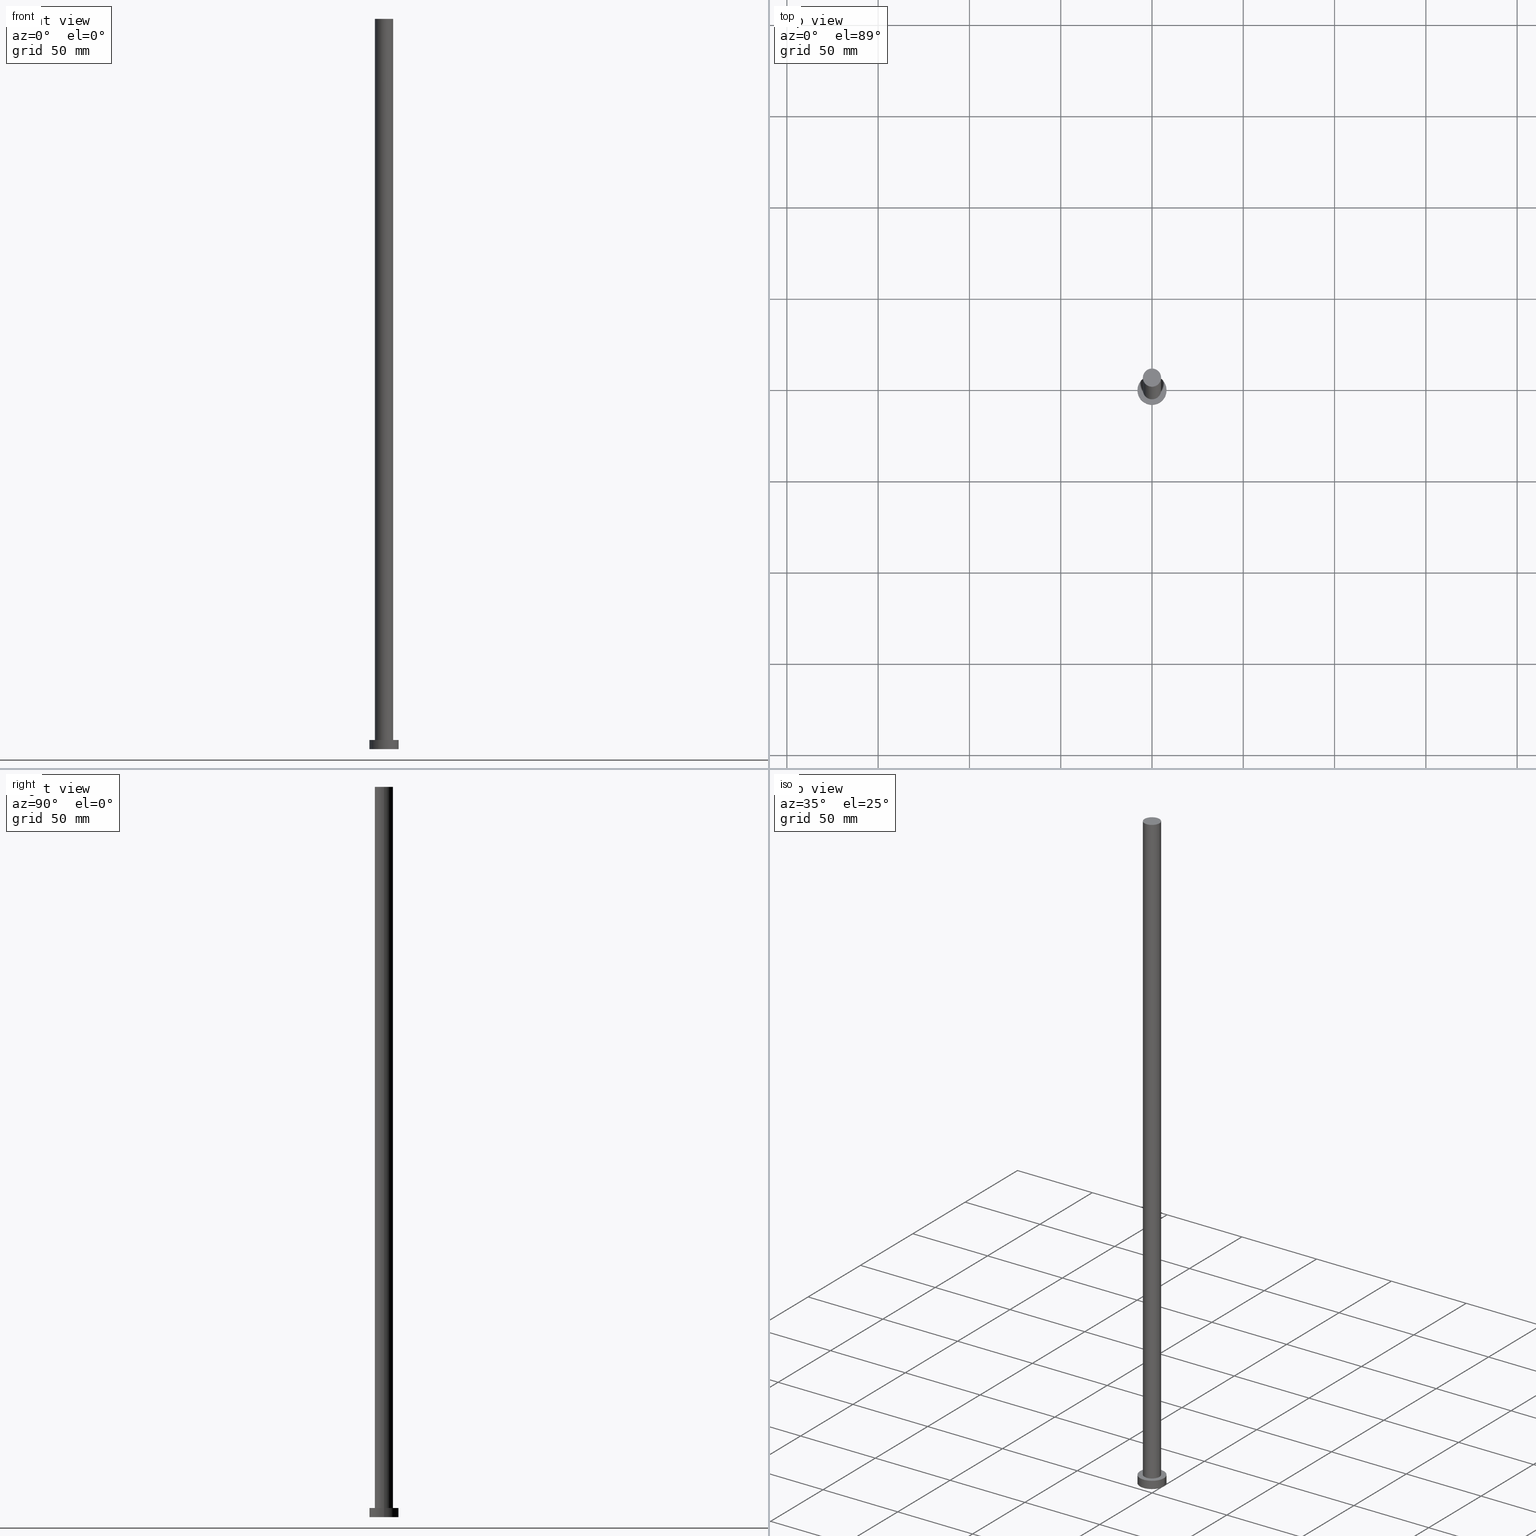
[diagram: canonical four-view strip — front | top / right | iso, engineering-drawing reading convention]
A machine part, canonical four-view strip (front | top / right | iso — engineering-drawing reading convention). The complete STEP part file that produces these views, byte-faithful:
ISO-10303-21;
HEADER;
FILE_DESCRIPTION (( 'STEP AP203' ),
    '1' );
FILE_NAME ('90de.STEP',
    '2023-02-13T09:58:58',
    ( '' ),
    ( '' ),
    'SwSTEP 2.0',
    'SolidWorks 2019',
    '' );
FILE_SCHEMA (( 'CONFIG_CONTROL_DESIGN' ));
ENDSEC;

DATA;
#1 = CC_DESIGN_PERSON_AND_ORGANIZATION_ASSIGNMENT ( #200, #29, ( #128 ) ) ;
#2 = DIRECTION ( 'NONE',  ( 0.000000000000000000, 0.000000000000000000, 1.000000000000000000 ) ) ;
#3 = ORIENTED_EDGE ( 'NONE', *, *, #202, .F. ) ;
#4 = PERSON_AND_ORGANIZATION ( #237, #148 ) ;
#5 = DIRECTION ( 'NONE',  ( 1.000000000000000000, 0.000000000000000000, -0.000000000000000000 ) ) ;
#6 = VERTEX_POINT ( 'NONE', #255 ) ;
#7 = CYLINDRICAL_SURFACE ( 'NONE', #106, 5.000000000000000888 ) ;
#8 = CARTESIAN_POINT ( 'NONE',  ( 5.000000000000000888, 6.123233995736766282E-16, 400.0000000000000000 ) ) ;
#9 = APPROVAL_ROLE ( '' ) ;
#10 = AXIS2_PLACEMENT_3D ( 'NONE', #138, #37, #36 ) ;
#11 = CYLINDRICAL_SURFACE ( 'NONE', #117, 8.000000000000000000 ) ;
#12 = LOCAL_TIME ( 10, 58, 58.00000000000000000, #115 ) ;
#13 = DATE_AND_TIME ( #60, #12 ) ;
#14 = DIRECTION ( 'NONE',  ( -0.000000000000000000, -0.000000000000000000, -1.000000000000000000 ) ) ;
#15 = APPROVAL ( #186, 'NEUR�EN�' ) ;
#16 = FACE_OUTER_BOUND ( 'NONE', #153, .T. ) ;
#17 = DATE_TIME_ROLE ( 'classification_date' ) ;
#18 = AXIS2_PLACEMENT_3D ( 'NONE', #236, #214, #114 ) ;
#19 = EDGE_CURVE ( 'NONE', #156, #93, #97, .T. ) ;
#20 = AXIS2_PLACEMENT_3D ( 'NONE', #213, #77, #170 ) ;
#21 = PRODUCT_DEFINITION_SHAPE ( 'NONE', 'NONE',  #247 ) ;
#22 = DATE_AND_TIME ( #94, #215 ) ;
#23 = LOCAL_TIME ( 10, 58, 58.00000000000000000, #210 ) ;
#24 = CARTESIAN_POINT ( 'NONE',  ( 0.000000000000000000, 0.000000000000000000, 5.000000000000000000 ) ) ;
#25 = CARTESIAN_POINT ( 'NONE',  ( 0.000000000000000000, 0.000000000000000000, 400.0000000000000000 ) ) ;
#26 = AXIS2_PLACEMENT_3D ( 'NONE', #136, #61, #104 ) ;
#27 = CC_DESIGN_APPROVAL ( #197, ( #128 ) ) ;
#28 = DIRECTION ( 'NONE',  ( 1.000000000000000000, 0.000000000000000000, 0.000000000000000000 ) ) ;
#29 = PERSON_AND_ORGANIZATION_ROLE ( 'classification_officer' ) ;
#30 = CALENDAR_DATE ( 2023, 13, 2 ) ;
#31 = AXIS2_PLACEMENT_3D ( 'NONE', #68, #218, #167 ) ;
#32 = PRODUCT_RELATED_PRODUCT_CATEGORY ( 'detail', '', ( #226 ) ) ;
#33 = DIRECTION ( 'NONE',  ( 1.000000000000000000, 0.000000000000000000, 0.000000000000000000 ) ) ;
#34 = SHAPE_DEFINITION_REPRESENTATION ( #21, #165 ) ;
#35 = EDGE_LOOP ( 'NONE', ( #252, #243, #91, #232 ) ) ;
#36 = DIRECTION ( 'NONE',  ( 1.000000000000000000, 0.000000000000000000, 0.000000000000000000 ) ) ;
#37 = DIRECTION ( 'NONE',  ( 0.000000000000000000, 0.000000000000000000, 1.000000000000000000 ) ) ;
#38 =( GEOMETRIC_REPRESENTATION_CONTEXT ( 3 ) GLOBAL_UNCERTAINTY_ASSIGNED_CONTEXT ( ( #55 ) ) GLOBAL_UNIT_ASSIGNED_CONTEXT ( ( #112, #127, #245 ) ) REPRESENTATION_CONTEXT ( 'NONE', 'WORKASPACE' ) );
#39 = EDGE_CURVE ( 'NONE', #93, #88, #130, .T. ) ;
#40 = DIRECTION ( 'NONE',  ( -1.000000000000000000, 0.000000000000000000, 0.000000000000000000 ) ) ;
#41 = APPLICATION_PROTOCOL_DEFINITION ( 'international standard', 'config_control_design', 1994, #177 ) ;
#42 = CIRCLE ( 'NONE', #31, 5.000000000000000888 ) ;
#43 = CC_DESIGN_SECURITY_CLASSIFICATION ( #128, ( #154 ) ) ;
#44 = ORIENTED_EDGE ( 'NONE', *, *, #151, .T. ) ;
#45 = MANIFOLD_SOLID_BREP ( 'P�idat vysunut�m3', #140 ) ;
#46 = CARTESIAN_POINT ( 'NONE',  ( 8.000000000000000000, 9.797174393178825657E-16, 5.000000000000000000 ) ) ;
#47 = ORIENTED_EDGE ( 'NONE', *, *, #84, .T. ) ;
#48 = CC_DESIGN_PERSON_AND_ORGANIZATION_ASSIGNMENT ( #207, #76, ( #247 ) ) ;
#49 = AXIS2_PLACEMENT_3D ( 'NONE', #238, #144, #219 ) ;
#50 = DATE_AND_TIME ( #53, #63 ) ;
#51 = ORIENTED_EDGE ( 'NONE', *, *, #113, .T. ) ;
#52 = PERSON_AND_ORGANIZATION ( #237, #148 ) ;
#53 = CALENDAR_DATE ( 2023, 13, 2 ) ;
#54 = EDGE_LOOP ( 'NONE', ( #129, #51 ) ) ;
#55 = UNCERTAINTY_MEASURE_WITH_UNIT (LENGTH_MEASURE( 1.000000000000000082E-05 ), #112, 'distance_accuracy_value', 'NONE');
#56 = ORIENTED_EDGE ( 'NONE', *, *, #102, .T. ) ;
#57 = CALENDAR_DATE ( 2023, 13, 2 ) ;
#58 = PERSON_AND_ORGANIZATION ( #237, #148 ) ;
#59 = CARTESIAN_POINT ( 'NONE',  ( 5.000000000000000888, 6.123233995736766282E-16, 5.000000000000000000 ) ) ;
#60 = CALENDAR_DATE ( 2023, 13, 2 ) ;
#61 = DIRECTION ( 'NONE',  ( -0.000000000000000000, -0.000000000000000000, -1.000000000000000000 ) ) ;
#62 = CIRCLE ( 'NONE', #124, 5.000000000000000888 ) ;
#63 = LOCAL_TIME ( 10, 58, 58.00000000000000000, #231 ) ;
#64 = LINE ( 'NONE', #122, #82 ) ;
#65 = CC_DESIGN_APPROVAL ( #139, ( #247 ) ) ;
#66 = DIRECTION ( 'NONE',  ( 1.000000000000000000, 0.000000000000000000, 0.000000000000000000 ) ) ;
#67 = ORIENTED_EDGE ( 'NONE', *, *, #253, .T. ) ;
#68 = CARTESIAN_POINT ( 'NONE',  ( 0.000000000000000000, 0.000000000000000000, 5.000000000000000000 ) ) ;
#69 = EDGE_LOOP ( 'NONE', ( #3, #147 ) ) ;
#70 = ADVANCED_FACE ( 'NONE', ( #16 ), #171, .T. ) ;
#71 = DIRECTION ( 'NONE',  ( -0.000000000000000000, -0.000000000000000000, -1.000000000000000000 ) ) ;
#72 = ORIENTED_EDGE ( 'NONE', *, *, #39, .F. ) ;
#73 = CIRCLE ( 'NONE', #169, 8.000000000000000000 ) ;
#74 = EDGE_LOOP ( 'NONE', ( #47, #44 ) ) ;
#75 = ADVANCED_FACE ( 'NONE', ( #116 ), #176, .T. ) ;
#76 = PERSON_AND_ORGANIZATION_ROLE ( 'creator' ) ;
#77 = DIRECTION ( 'NONE',  ( 0.000000000000000000, 0.000000000000000000, 1.000000000000000000 ) ) ;
#78 = DATE_TIME_ROLE ( 'creation_date' ) ;
#79 = ORIENTED_EDGE ( 'NONE', *, *, #39, .T. ) ;
#80 = DIRECTION ( 'NONE',  ( 0.000000000000000000, 0.000000000000000000, 1.000000000000000000 ) ) ;
#81 = DIRECTION ( 'NONE',  ( -1.000000000000000000, 0.000000000000000000, 0.000000000000000000 ) ) ;
#82 = VECTOR ( 'NONE', #196, 1000.000000000000000 ) ;
#83 = VECTOR ( 'NONE', #96, 1000.000000000000000 ) ;
#84 = EDGE_CURVE ( 'NONE', #211, #158, #73, .T. ) ;
#85 = PLANE ( 'NONE',  #175 ) ;
#86 = PERSON_AND_ORGANIZATION_ROLE ( 'design_supplier' ) ;
#87 = FACE_OUTER_BOUND ( 'NONE', #174, .T. ) ;
#88 = VERTEX_POINT ( 'NONE', #59 ) ;
#89 = EDGE_CURVE ( 'NONE', #88, #6, #137, .T. ) ;
#90 = DIRECTION ( 'NONE',  ( 0.000000000000000000, 0.000000000000000000, 1.000000000000000000 ) ) ;
#91 = ORIENTED_EDGE ( 'NONE', *, *, #142, .T. ) ;
#92 = DIRECTION ( 'NONE',  ( 1.000000000000000000, 0.000000000000000000, -0.000000000000000000 ) ) ;
#93 = VERTEX_POINT ( 'NONE', #8 ) ;
#94 = CALENDAR_DATE ( 2023, 13, 2 ) ;
#95 = PERSON_AND_ORGANIZATION ( #237, #148 ) ;
#96 = DIRECTION ( 'NONE',  ( -0.000000000000000000, -0.000000000000000000, -1.000000000000000000 ) ) ;
#97 = CIRCLE ( 'NONE', #217, 5.000000000000000888 ) ;
#98 = CC_DESIGN_DATE_AND_TIME_ASSIGNMENT ( #101, #78, ( #247 ) ) ;
#99 = COORDINATED_UNIVERSAL_TIME_OFFSET ( 1, 0, .AHEAD. ) ;
#100 = CARTESIAN_POINT ( 'NONE',  ( 0.000000000000000000, 0.000000000000000000, 5.000000000000000000 ) ) ;
#101 = DATE_AND_TIME ( #30, #227 ) ;
#102 = EDGE_CURVE ( 'NONE', #156, #6, #134, .T. ) ;
#103 = EDGE_CURVE ( 'NONE', #203, #182, #107, .T. ) ;
#104 = DIRECTION ( 'NONE',  ( -1.000000000000000000, 0.000000000000000000, 0.000000000000000000 ) ) ;
#105 = APPLICATION_CONTEXT ( 'configuration controlled 3d designs of mechanical parts and assemblies' ) ;
#106 = AXIS2_PLACEMENT_3D ( 'NONE', #25, #71, #40 ) ;
#107 = CIRCLE ( 'NONE', #20, 8.000000000000000000 ) ;
#108 = MECHANICAL_CONTEXT ( 'NONE', #177, 'mechanical' ) ;
#109 = CARTESIAN_POINT ( 'NONE',  ( 0.000000000000000000, 0.000000000000000000, 400.0000000000000000 ) ) ;
#110 = DIRECTION ( 'NONE',  ( 0.000000000000000000, 0.000000000000000000, 1.000000000000000000 ) ) ;
#111 = EDGE_LOOP ( 'NONE', ( #221, #67, #192, #118 ) ) ;
#112 =( LENGTH_UNIT ( ) NAMED_UNIT ( * ) SI_UNIT ( .MILLI., .METRE. ) );
#113 = EDGE_CURVE ( 'NONE', #93, #156, #62, .T. ) ;
#114 = DIRECTION ( 'NONE',  ( 1.000000000000000000, 0.000000000000000000, 0.000000000000000000 ) ) ;
#115 = COORDINATED_UNIVERSAL_TIME_OFFSET ( 1, 0, .AHEAD. ) ;
#116 = FACE_OUTER_BOUND ( 'NONE', #111, .T. ) ;
#117 = AXIS2_PLACEMENT_3D ( 'NONE', #100, #250, #143 ) ;
#118 = ORIENTED_EDGE ( 'NONE', *, *, #142, .F. ) ;
#119 = ORIENTED_EDGE ( 'NONE', *, *, #19, .F. ) ;
#120 = ADVANCED_FACE ( 'NONE', ( #188 ), #11, .T. ) ;
#121 = EDGE_LOOP ( 'NONE', ( #162, #208 ) ) ;
#122 = CARTESIAN_POINT ( 'NONE',  ( -8.000000000000000000, 0.000000000000000000, 5.000000000000000000 ) ) ;
#123 = DIRECTION ( 'NONE',  ( -0.000000000000000000, -0.000000000000000000, -1.000000000000000000 ) ) ;
#124 = AXIS2_PLACEMENT_3D ( 'NONE', #155, #209, #28 ) ;
#125 = FACE_OUTER_BOUND ( 'NONE', #69, .T. ) ;
#126 = PLANE ( 'NONE',  #141 ) ;
#127 =( NAMED_UNIT ( * ) PLANE_ANGLE_UNIT ( ) SI_UNIT ( $, .RADIAN. ) );
#128 = SECURITY_CLASSIFICATION ( '', '', #222 ) ;
#129 = ORIENTED_EDGE ( 'NONE', *, *, #19, .T. ) ;
#130 = LINE ( 'NONE', #194, #164 ) ;
#131 = PERSON_AND_ORGANIZATION ( #237, #148 ) ;
#132 = ORIENTED_EDGE ( 'NONE', *, *, #102, .F. ) ;
#133 = CIRCLE ( 'NONE', #212, 8.000000000000000000 ) ;
#134 = LINE ( 'NONE', #229, #83 ) ;
#135 = DESIGN_CONTEXT ( 'detailed design', #105, 'design' ) ;
#136 = CARTESIAN_POINT ( 'NONE',  ( 0.000000000000000000, 0.000000000000000000, 400.0000000000000000 ) ) ;
#137 = CIRCLE ( 'NONE', #18, 5.000000000000000888 ) ;
#138 = CARTESIAN_POINT ( 'NONE',  ( 0.000000000000000000, 0.000000000000000000, 5.000000000000000000 ) ) ;
#139 = APPROVAL ( #225, 'NEUR�EN�' ) ;
#140 = CLOSED_SHELL ( 'NONE', ( #242, #75, #120, #185, #233, #70, #193 ) ) ;
#141 = AXIS2_PLACEMENT_3D ( 'NONE', #24, #220, #201 ) ;
#142 = EDGE_CURVE ( 'NONE', #211, #182, #64, .T. ) ;
#143 = DIRECTION ( 'NONE',  ( -1.000000000000000000, 0.000000000000000000, 0.000000000000000000 ) ) ;
#144 = DIRECTION ( 'NONE',  ( 0.000000000000000000, 0.000000000000000000, 1.000000000000000000 ) ) ;
#145 = CC_DESIGN_PERSON_AND_ORGANIZATION_ASSIGNMENT ( #4, #86, ( #154 ) ) ;
#146 = FACE_BOUND ( 'NONE', #121, .T. ) ;
#147 = ORIENTED_EDGE ( 'NONE', *, *, #103, .F. ) ;
#148 = ORGANIZATION ( 'NEUR�EN�', 'NEUR�EN�', '' ) ;
#149 = CARTESIAN_POINT ( 'NONE',  ( -8.000000000000000000, 0.000000000000000000, 0.000000000000000000 ) ) ;
#150 = FACE_OUTER_BOUND ( 'NONE', #74, .T. ) ;
#151 = EDGE_CURVE ( 'NONE', #158, #211, #205, .T. ) ;
#152 = AXIS2_PLACEMENT_3D ( 'NONE', #191, #14, #81 ) ;
#153 = EDGE_LOOP ( 'NONE', ( #72, #119, #56, #246 ) ) ;
#154 = PRODUCT_DEFINITION_FORMATION_WITH_SPECIFIED_SOURCE ( 'LIBOVOLN�', '', #226, .NOT_KNOWN. ) ;
#155 = CARTESIAN_POINT ( 'NONE',  ( 0.000000000000000000, 0.000000000000000000, 400.0000000000000000 ) ) ;
#156 = VERTEX_POINT ( 'NONE', #178 ) ;
#157 = PERSON_AND_ORGANIZATION_ROLE ( 'design_owner' ) ;
#158 = VERTEX_POINT ( 'NONE', #46 ) ;
#159 = APPROVAL_DATE_TIME ( #13, #197 ) ;
#160 = DIRECTION ( 'NONE',  ( 1.000000000000000000, 0.000000000000000000, 0.000000000000000000 ) ) ;
#161 = DATE_AND_TIME ( #57, #23 ) ;
#162 = ORIENTED_EDGE ( 'NONE', *, *, #163, .F. ) ;
#163 = EDGE_CURVE ( 'NONE', #6, #88, #42, .T. ) ;
#164 = VECTOR ( 'NONE', #234, 1000.000000000000000 ) ;
#165 = ADVANCED_BREP_SHAPE_REPRESENTATION ( '90de', ( #45, #49 ), #38 ) ;
#166 = PERSON_AND_ORGANIZATION_ROLE ( 'creator' ) ;
#167 = DIRECTION ( 'NONE',  ( 1.000000000000000000, 0.000000000000000000, 0.000000000000000000 ) ) ;
#168 = FACE_OUTER_BOUND ( 'NONE', #54, .T. ) ;
#169 = AXIS2_PLACEMENT_3D ( 'NONE', #173, #230, #33 ) ;
#170 = DIRECTION ( 'NONE',  ( 1.000000000000000000, 0.000000000000000000, 0.000000000000000000 ) ) ;
#171 = CYLINDRICAL_SURFACE ( 'NONE', #26, 5.000000000000000888 ) ;
#172 = APPROVAL_DATE_TIME ( #50, #139 ) ;
#173 = CARTESIAN_POINT ( 'NONE',  ( 0.000000000000000000, 0.000000000000000000, 5.000000000000000000 ) ) ;
#174 = EDGE_LOOP ( 'NONE', ( #187, #79, #224, #132 ) ) ;
#175 = AXIS2_PLACEMENT_3D ( 'NONE', #199, #2, #5 ) ;
#176 = CYLINDRICAL_SURFACE ( 'NONE', #152, 8.000000000000000000 ) ;
#177 = APPLICATION_CONTEXT ( 'configuration controlled 3d designs of mechanical parts and assemblies' ) ;
#178 = CARTESIAN_POINT ( 'NONE',  ( -5.000000000000000888, 0.000000000000000000, 400.0000000000000000 ) ) ;
#179 = AXIS2_PLACEMENT_3D ( 'NONE', #109, #90, #92 ) ;
#180 = APPROVAL_DATE_TIME ( #22, #15 ) ;
#181 = CARTESIAN_POINT ( 'NONE',  ( 0.000000000000000000, 0.000000000000000000, 0.000000000000000000 ) ) ;
#182 = VERTEX_POINT ( 'NONE', #149 ) ;
#183 = PERSON_AND_ORGANIZATION ( #237, #148 ) ;
#184 = CARTESIAN_POINT ( 'NONE',  ( 8.000000000000000000, 9.797174393178825657E-16, 0.000000000000000000 ) ) ;
#185 = ADVANCED_FACE ( 'NONE', ( #146, #150 ), #126, .T. ) ;
#186 = APPROVAL_STATUS ( 'not_yet_approved' ) ;
#187 = ORIENTED_EDGE ( 'NONE', *, *, #113, .F. ) ;
#188 = FACE_OUTER_BOUND ( 'NONE', #35, .T. ) ;
#189 = APPROVAL_PERSON_ORGANIZATION ( #95, #139, #228 ) ;
#190 = CC_DESIGN_DATE_AND_TIME_ASSIGNMENT ( #161, #17, ( #128 ) ) ;
#191 = CARTESIAN_POINT ( 'NONE',  ( 0.000000000000000000, 0.000000000000000000, 5.000000000000000000 ) ) ;
#192 = ORIENTED_EDGE ( 'NONE', *, *, #103, .T. ) ;
#193 = ADVANCED_FACE ( 'NONE', ( #168 ), #239, .T. ) ;
#194 = CARTESIAN_POINT ( 'NONE',  ( 5.000000000000000888, 6.123233995736766282E-16, 400.0000000000000000 ) ) ;
#195 = APPROVAL_PERSON_ORGANIZATION ( #58, #15, #248 ) ;
#196 = DIRECTION ( 'NONE',  ( -0.000000000000000000, -0.000000000000000000, -1.000000000000000000 ) ) ;
#197 = APPROVAL ( #235, 'NEUR�EN�' ) ;
#198 = COORDINATED_UNIVERSAL_TIME_OFFSET ( 1, 0, .AHEAD. ) ;
#199 = CARTESIAN_POINT ( 'NONE',  ( 0.000000000000000000, 0.000000000000000000, 0.000000000000000000 ) ) ;
#200 = PERSON_AND_ORGANIZATION ( #237, #148 ) ;
#201 = DIRECTION ( 'NONE',  ( 1.000000000000000000, 0.000000000000000000, -0.000000000000000000 ) ) ;
#202 = EDGE_CURVE ( 'NONE', #182, #203, #133, .T. ) ;
#203 = VERTEX_POINT ( 'NONE', #184 ) ;
#204 = CARTESIAN_POINT ( 'NONE',  ( 8.000000000000000000, 9.797174393178825657E-16, 5.000000000000000000 ) ) ;
#205 = CIRCLE ( 'NONE', #10, 8.000000000000000000 ) ;
#206 = CC_DESIGN_APPROVAL ( #15, ( #154 ) ) ;
#207 = PERSON_AND_ORGANIZATION ( #237, #148 ) ;
#208 = ORIENTED_EDGE ( 'NONE', *, *, #89, .F. ) ;
#209 = DIRECTION ( 'NONE',  ( 0.000000000000000000, 0.000000000000000000, 1.000000000000000000 ) ) ;
#210 = COORDINATED_UNIVERSAL_TIME_OFFSET ( 1, 0, .AHEAD. ) ;
#211 = VERTEX_POINT ( 'NONE', #223 ) ;
#212 = AXIS2_PLACEMENT_3D ( 'NONE', #181, #110, #66 ) ;
#213 = CARTESIAN_POINT ( 'NONE',  ( 0.000000000000000000, 0.000000000000000000, 0.000000000000000000 ) ) ;
#214 = DIRECTION ( 'NONE',  ( 0.000000000000000000, 0.000000000000000000, 1.000000000000000000 ) ) ;
#215 = LOCAL_TIME ( 10, 58, 58.00000000000000000, #198 ) ;
#216 = CC_DESIGN_PERSON_AND_ORGANIZATION_ASSIGNMENT ( #183, #166, ( #154 ) ) ;
#217 = AXIS2_PLACEMENT_3D ( 'NONE', #249, #80, #160 ) ;
#218 = DIRECTION ( 'NONE',  ( 0.000000000000000000, 0.000000000000000000, 1.000000000000000000 ) ) ;
#219 = DIRECTION ( 'NONE',  ( 1.000000000000000000, 0.000000000000000000, 0.000000000000000000 ) ) ;
#220 = DIRECTION ( 'NONE',  ( 0.000000000000000000, 0.000000000000000000, 1.000000000000000000 ) ) ;
#221 = ORIENTED_EDGE ( 'NONE', *, *, #151, .F. ) ;
#222 = SECURITY_CLASSIFICATION_LEVEL ( 'unclassified' ) ;
#223 = CARTESIAN_POINT ( 'NONE',  ( -8.000000000000000000, 0.000000000000000000, 5.000000000000000000 ) ) ;
#224 = ORIENTED_EDGE ( 'NONE', *, *, #89, .T. ) ;
#225 = APPROVAL_STATUS ( 'not_yet_approved' ) ;
#226 = PRODUCT ( '90de', '90de', '', ( #108 ) ) ;
#227 = LOCAL_TIME ( 10, 58, 58.00000000000000000, #99 ) ;
#228 = APPROVAL_ROLE ( '' ) ;
#229 = CARTESIAN_POINT ( 'NONE',  ( -5.000000000000000888, 0.000000000000000000, 400.0000000000000000 ) ) ;
#230 = DIRECTION ( 'NONE',  ( 0.000000000000000000, 0.000000000000000000, 1.000000000000000000 ) ) ;
#231 = COORDINATED_UNIVERSAL_TIME_OFFSET ( 1, 0, .AHEAD. ) ;
#232 = ORIENTED_EDGE ( 'NONE', *, *, #202, .T. ) ;
#233 = ADVANCED_FACE ( 'NONE', ( #125 ), #85, .F. ) ;
#234 = DIRECTION ( 'NONE',  ( -0.000000000000000000, -0.000000000000000000, -1.000000000000000000 ) ) ;
#235 = APPROVAL_STATUS ( 'not_yet_approved' ) ;
#236 = CARTESIAN_POINT ( 'NONE',  ( 0.000000000000000000, 0.000000000000000000, 5.000000000000000000 ) ) ;
#237 = PERSON ( 'NEUR�EN�', 'NEUR�EN�', 'NEUR�EN�', ('NEUR�EN�'), ('NEUR�EN�'), ('NEUR�EN�') ) ;
#238 = CARTESIAN_POINT ( 'NONE',  ( 0.000000000000000000, 0.000000000000000000, 0.000000000000000000 ) ) ;
#239 = PLANE ( 'NONE',  #179 ) ;
#240 = VECTOR ( 'NONE', #123, 1000.000000000000000 ) ;
#241 = APPROVAL_PERSON_ORGANIZATION ( #52, #197, #9 ) ;
#242 = ADVANCED_FACE ( 'NONE', ( #87 ), #7, .T. ) ;
#243 = ORIENTED_EDGE ( 'NONE', *, *, #84, .F. ) ;
#244 = LINE ( 'NONE', #204, #240 ) ;
#245 =( NAMED_UNIT ( * ) SI_UNIT ( $, .STERADIAN. ) SOLID_ANGLE_UNIT ( ) );
#246 = ORIENTED_EDGE ( 'NONE', *, *, #163, .T. ) ;
#247 = PRODUCT_DEFINITION ( 'NEZN�M�', '', #154, #135 ) ;
#248 = APPROVAL_ROLE ( '' ) ;
#249 = CARTESIAN_POINT ( 'NONE',  ( 0.000000000000000000, 0.000000000000000000, 400.0000000000000000 ) ) ;
#250 = DIRECTION ( 'NONE',  ( -0.000000000000000000, -0.000000000000000000, -1.000000000000000000 ) ) ;
#251 = APPLICATION_PROTOCOL_DEFINITION ( 'international standard', 'config_control_design', 1994, #105 ) ;
#252 = ORIENTED_EDGE ( 'NONE', *, *, #253, .F. ) ;
#253 = EDGE_CURVE ( 'NONE', #158, #203, #244, .T. ) ;
#254 = CC_DESIGN_PERSON_AND_ORGANIZATION_ASSIGNMENT ( #131, #157, ( #226 ) ) ;
#255 = CARTESIAN_POINT ( 'NONE',  ( -5.000000000000000888, 0.000000000000000000, 5.000000000000000000 ) ) ;
ENDSEC;
END-ISO-10303-21;
